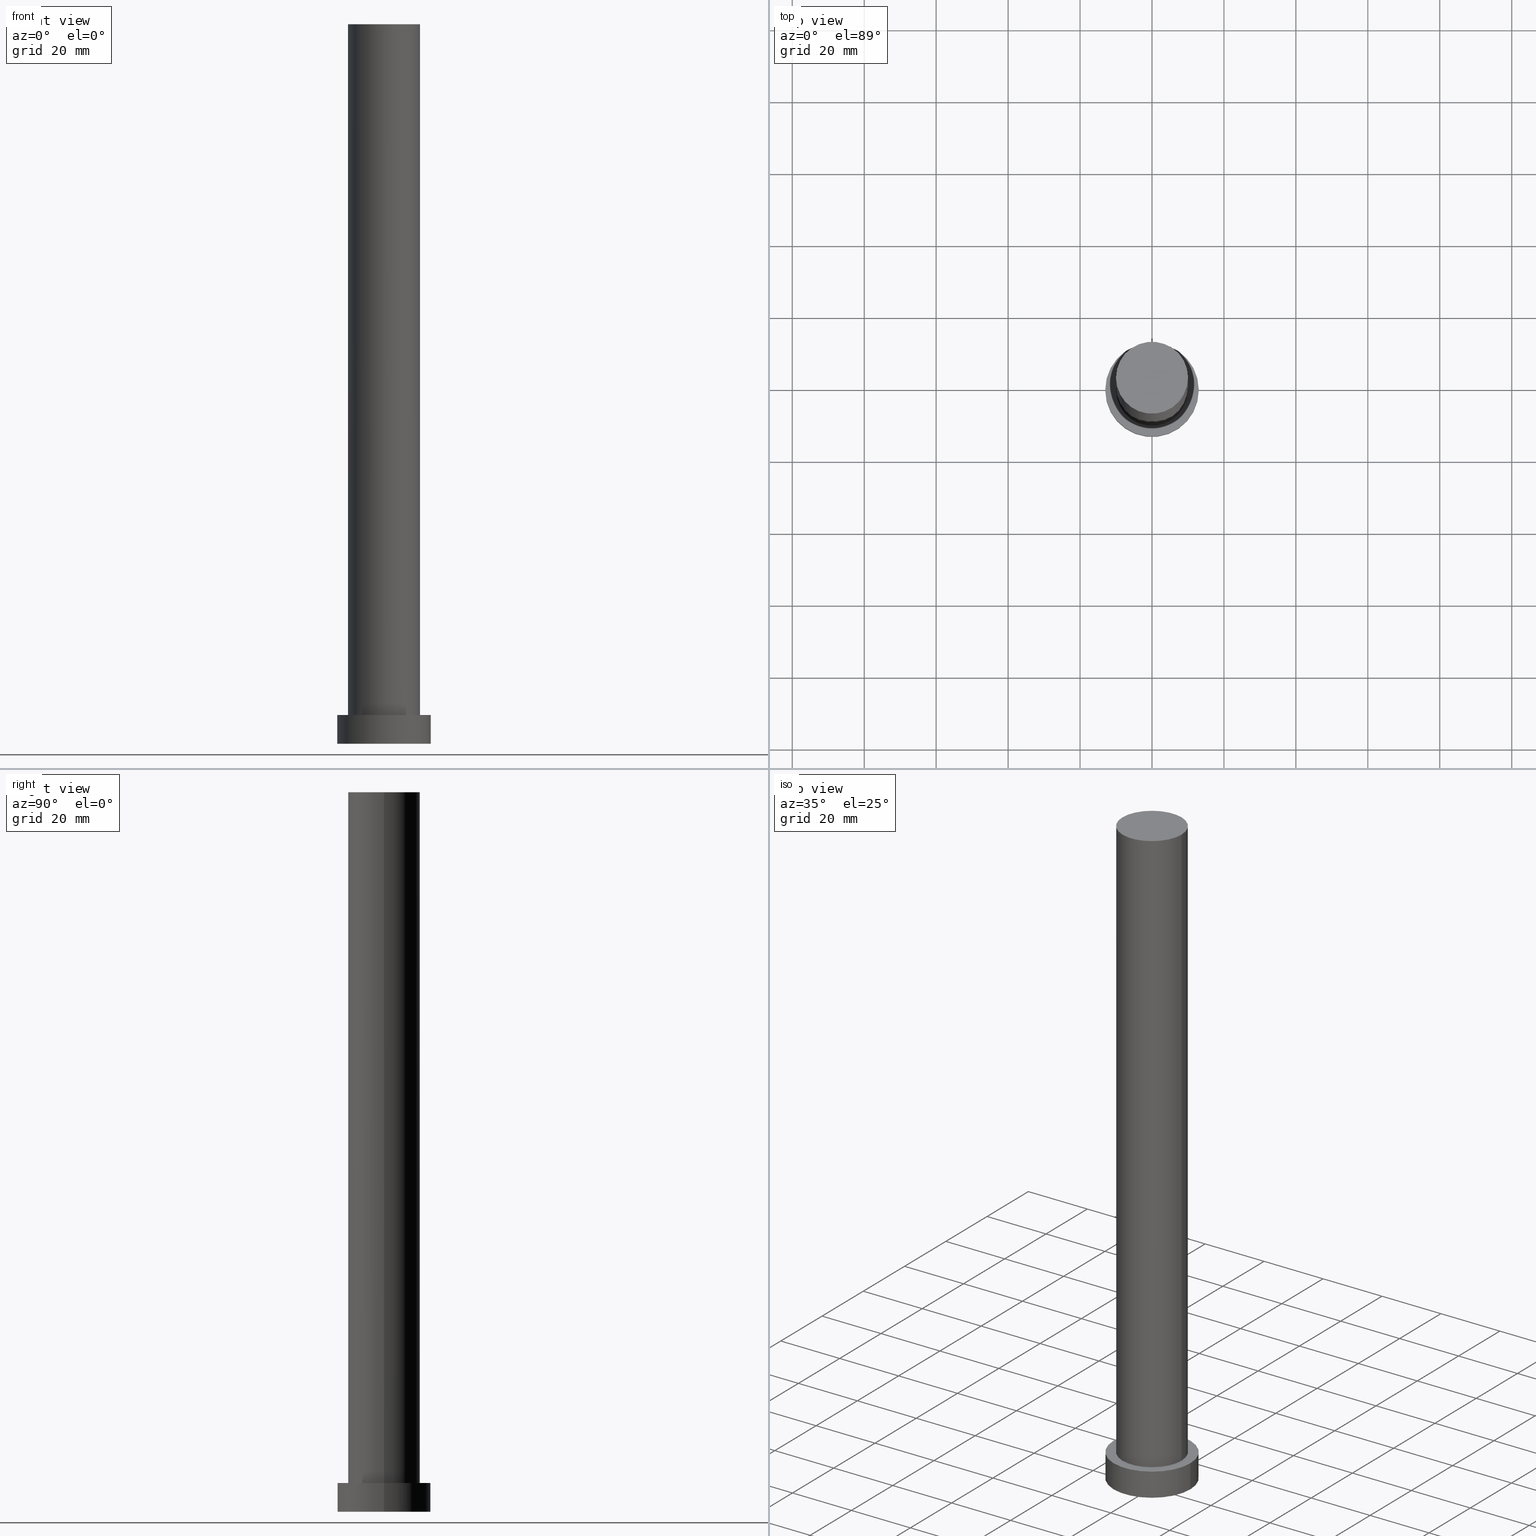
[diagram: canonical four-view strip — front | top / right | iso, engineering-drawing reading convention]
A machine part, canonical four-view strip (front | top / right | iso — engineering-drawing reading convention). The complete STEP part file that produces these views, byte-faithful:
ISO-10303-21;
HEADER;
FILE_DESCRIPTION (( 'STEP AP203' ),
    '1' );
FILE_NAME ('8702.STEP',
    '2023-02-13T07:34:11',
    ( '' ),
    ( '' ),
    'SwSTEP 2.0',
    'SolidWorks 2019',
    '' );
FILE_SCHEMA (( 'CONFIG_CONTROL_DESIGN' ));
ENDSEC;

DATA;
#1 = DIRECTION ( 'NONE',  ( 1.000000000000000000, 0.000000000000000000, 0.000000000000000000 ) ) ;
#2 = ORIENTED_EDGE ( 'NONE', *, *, #141, .T. ) ;
#3 = EDGE_CURVE ( 'NONE', #122, #185, #15, .T. ) ;
#4 = DESIGN_CONTEXT ( 'detailed design', #58, 'design' ) ;
#5 = DIRECTION ( 'NONE',  ( -0.000000000000000000, -0.000000000000000000, -1.000000000000000000 ) ) ;
#6 = ORIENTED_EDGE ( 'NONE', *, *, #32, .T. ) ;
#7 = CARTESIAN_POINT ( 'NONE',  ( 0.000000000000000000, 0.000000000000000000, 200.0000000000000000 ) ) ;
#8 = CC_DESIGN_PERSON_AND_ORGANIZATION_ASSIGNMENT ( #128, #206, ( #39 ) ) ;
#9 = CARTESIAN_POINT ( 'NONE',  ( 13.00000000000000178, 1.592040838891559293E-15, 8.000000000000000000 ) ) ;
#10 = ORIENTED_EDGE ( 'NONE', *, *, #173, .T. ) ;
#11 = ADVANCED_FACE ( 'NONE', ( #129 ), #191, .T. ) ;
#12 = CC_DESIGN_APPROVAL ( #248, ( #132 ) ) ;
#13 = DATE_TIME_ROLE ( 'creation_date' ) ;
#14 = APPROVAL_DATE_TIME ( #76, #243 ) ;
#15 = CIRCLE ( 'NONE', #143, 10.00000000000000000 ) ;
#16 = CC_DESIGN_PERSON_AND_ORGANIZATION_ASSIGNMENT ( #207, #131, ( #145 ) ) ;
#17 = CARTESIAN_POINT ( 'NONE',  ( -13.00000000000000178, 0.000000000000000000, 8.000000000000000000 ) ) ;
#18 = VECTOR ( 'NONE', #79, 1000.000000000000000 ) ;
#19 = MANIFOLD_SOLID_BREP ( 'P�idat vysunut�m3', #209 ) ;
#20 = CARTESIAN_POINT ( 'NONE',  ( 10.00000000000000000, 1.224646799147353256E-15, 200.0000000000000000 ) ) ;
#21 = AXIS2_PLACEMENT_3D ( 'NONE', #165, #115, #196 ) ;
#22 = AXIS2_PLACEMENT_3D ( 'NONE', #158, #212, #235 ) ;
#23 = LOCAL_TIME ( 8, 34, 11.00000000000000000, #52 ) ;
#24 = DIRECTION ( 'NONE',  ( -0.000000000000000000, -0.000000000000000000, -1.000000000000000000 ) ) ;
#25 = COORDINATED_UNIVERSAL_TIME_OFFSET ( 1, 0, .AHEAD. ) ;
#26 = CARTESIAN_POINT ( 'NONE',  ( 0.000000000000000000, 0.000000000000000000, 8.000000000000000000 ) ) ;
#27 = ORIENTED_EDGE ( 'NONE', *, *, #57, .T. ) ;
#28 = ADVANCED_FACE ( 'NONE', ( #133 ), #37, .T. ) ;
#29 = CARTESIAN_POINT ( 'NONE',  ( 0.000000000000000000, 0.000000000000000000, 8.000000000000000000 ) ) ;
#30 = EDGE_LOOP ( 'NONE', ( #140, #63, #6, #10 ) ) ;
#31 = PERSON_AND_ORGANIZATION ( #49, #197 ) ;
#32 = EDGE_CURVE ( 'NONE', #238, #185, #95, .T. ) ;
#33 = PERSON_AND_ORGANIZATION_ROLE ( 'classification_officer' ) ;
#34 = PERSON_AND_ORGANIZATION ( #49, #197 ) ;
#35 = DIRECTION ( 'NONE',  ( -0.000000000000000000, -0.000000000000000000, -1.000000000000000000 ) ) ;
#36 = AXIS2_PLACEMENT_3D ( 'NONE', #110, #111, #193 ) ;
#37 = CYLINDRICAL_SURFACE ( 'NONE', #36, 10.00000000000000000 ) ;
#38 = DIRECTION ( 'NONE',  ( 0.000000000000000000, 0.000000000000000000, 1.000000000000000000 ) ) ;
#39 = PRODUCT_DEFINITION ( 'NEZN�M�', '', #145, #4 ) ;
#40 = DIRECTION ( 'NONE',  ( -1.000000000000000000, 0.000000000000000000, 0.000000000000000000 ) ) ;
#41 = CARTESIAN_POINT ( 'NONE',  ( -13.00000000000000178, 0.000000000000000000, 0.000000000000000000 ) ) ;
#42 = AXIS2_PLACEMENT_3D ( 'NONE', #53, #35, #232 ) ;
#43 = LOCAL_TIME ( 8, 34, 11.00000000000000000, #72 ) ;
#44 = FACE_OUTER_BOUND ( 'NONE', #162, .T. ) ;
#45 = EDGE_LOOP ( 'NONE', ( #70, #220, #201, #69 ) ) ;
#46 = PERSON_AND_ORGANIZATION ( #49, #197 ) ;
#47 = CARTESIAN_POINT ( 'NONE',  ( 0.000000000000000000, 0.000000000000000000, 8.000000000000000000 ) ) ;
#48 = VERTEX_POINT ( 'NONE', #194 ) ;
#49 = PERSON ( 'NEUR�EN�', 'NEUR�EN�', 'NEUR�EN�', ('NEUR�EN�'), ('NEUR�EN�'), ('NEUR�EN�') ) ;
#50 = ORIENTED_EDGE ( 'NONE', *, *, #32, .F. ) ;
#51 = APPROVAL_DATE_TIME ( #228, #248 ) ;
#52 = COORDINATED_UNIVERSAL_TIME_OFFSET ( 1, 0, .AHEAD. ) ;
#53 = CARTESIAN_POINT ( 'NONE',  ( 0.000000000000000000, 0.000000000000000000, 200.0000000000000000 ) ) ;
#54 = SECURITY_CLASSIFICATION_LEVEL ( 'unclassified' ) ;
#55 = ADVANCED_FACE ( 'NONE', ( #60 ), #112, .T. ) ;
#56 = AXIS2_PLACEMENT_3D ( 'NONE', #26, #101, #183 ) ;
#57 = EDGE_CURVE ( 'NONE', #126, #238, #157, .T. ) ;
#58 = APPLICATION_CONTEXT ( 'configuration controlled 3d designs of mechanical parts and assemblies' ) ;
#59 = CARTESIAN_POINT ( 'NONE',  ( 13.00000000000000178, 1.592040838891559293E-15, 0.000000000000000000 ) ) ;
#60 = FACE_OUTER_BOUND ( 'NONE', #45, .T. ) ;
#61 = AXIS2_PLACEMENT_3D ( 'NONE', #99, #146, #180 ) ;
#62 = DIRECTION ( 'NONE',  ( -0.000000000000000000, -0.000000000000000000, -1.000000000000000000 ) ) ;
#63 = ORIENTED_EDGE ( 'NONE', *, *, #202, .F. ) ;
#64 = ORIENTED_EDGE ( 'NONE', *, *, #3, .F. ) ;
#65 = COORDINATED_UNIVERSAL_TIME_OFFSET ( 1, 0, .AHEAD. ) ;
#66 = CARTESIAN_POINT ( 'NONE',  ( 10.00000000000000000, 1.224646799147353256E-15, 8.000000000000000000 ) ) ;
#67 = ORIENTED_EDGE ( 'NONE', *, *, #181, .F. ) ;
#68 = PLANE ( 'NONE',  #21 ) ;
#69 = ORIENTED_EDGE ( 'NONE', *, *, #181, .T. ) ;
#70 = ORIENTED_EDGE ( 'NONE', *, *, #97, .F. ) ;
#71 = AXIS2_PLACEMENT_3D ( 'NONE', #253, #195, #40 ) ;
#72 = COORDINATED_UNIVERSAL_TIME_OFFSET ( 1, 0, .AHEAD. ) ;
#73 = PERSON_AND_ORGANIZATION ( #49, #197 ) ;
#74 = EDGE_CURVE ( 'NONE', #216, #120, #236, .T. ) ;
#75 = APPLICATION_CONTEXT ( 'configuration controlled 3d designs of mechanical parts and assemblies' ) ;
#76 = DATE_AND_TIME ( #250, #192 ) ;
#77 = APPLICATION_PROTOCOL_DEFINITION ( 'international standard', 'config_control_design', 1994, #75 ) ;
#78 = AXIS2_PLACEMENT_3D ( 'NONE', #47, #87, #179 ) ;
#79 = DIRECTION ( 'NONE',  ( -0.000000000000000000, -0.000000000000000000, -1.000000000000000000 ) ) ;
#80 = CC_DESIGN_DATE_AND_TIME_ASSIGNMENT ( #107, #13, ( #39 ) ) ;
#81 = PLANE ( 'NONE',  #134 ) ;
#82 = DIRECTION ( 'NONE',  ( 1.000000000000000000, 0.000000000000000000, 0.000000000000000000 ) ) ;
#83 = DIRECTION ( 'NONE',  ( 0.000000000000000000, 0.000000000000000000, 1.000000000000000000 ) ) ;
#84 = ORIENTED_EDGE ( 'NONE', *, *, #202, .T. ) ;
#85 = COORDINATED_UNIVERSAL_TIME_OFFSET ( 1, 0, .AHEAD. ) ;
#86 = CIRCLE ( 'NONE', #61, 13.00000000000000178 ) ;
#87 = DIRECTION ( 'NONE',  ( 0.000000000000000000, 0.000000000000000000, 1.000000000000000000 ) ) ;
#88 = VERTEX_POINT ( 'NONE', #59 ) ;
#89 = FACE_BOUND ( 'NONE', #169, .T. ) ;
#90 = ORIENTED_EDGE ( 'NONE', *, *, #221, .F. ) ;
#91 =( LENGTH_UNIT ( ) NAMED_UNIT ( * ) SI_UNIT ( .MILLI., .METRE. ) );
#92 = ADVANCED_FACE ( 'NONE', ( #98 ), #81, .F. ) ;
#93 = CIRCLE ( 'NONE', #255, 10.00000000000000000 ) ;
#94 = MECHANICAL_CONTEXT ( 'NONE', #75, 'mechanical' ) ;
#95 = LINE ( 'NONE', #114, #18 ) ;
#96 = CARTESIAN_POINT ( 'NONE',  ( 0.000000000000000000, 0.000000000000000000, 200.0000000000000000 ) ) ;
#97 = EDGE_CURVE ( 'NONE', #48, #88, #187, .T. ) ;
#98 = FACE_OUTER_BOUND ( 'NONE', #150, .T. ) ;
#99 = CARTESIAN_POINT ( 'NONE',  ( 0.000000000000000000, 0.000000000000000000, 0.000000000000000000 ) ) ;
#100 = UNCERTAINTY_MEASURE_WITH_UNIT (LENGTH_MEASURE( 1.000000000000000082E-05 ), #91, 'distance_accuracy_value', 'NONE');
#101 = DIRECTION ( 'NONE',  ( 0.000000000000000000, 0.000000000000000000, 1.000000000000000000 ) ) ;
#102 = CARTESIAN_POINT ( 'NONE',  ( 0.000000000000000000, 0.000000000000000000, 8.000000000000000000 ) ) ;
#103 = CARTESIAN_POINT ( 'NONE',  ( 10.00000000000000000, 1.224646799147353256E-15, 200.0000000000000000 ) ) ;
#104 = EDGE_LOOP ( 'NONE', ( #84, #27 ) ) ;
#105 = ADVANCED_BREP_SHAPE_REPRESENTATION ( '8702', ( #19, #22 ), #233 ) ;
#106 = ADVANCED_FACE ( 'NONE', ( #44 ), #119, .T. ) ;
#107 = DATE_AND_TIME ( #208, #23 ) ;
#108 = APPROVAL_STATUS ( 'not_yet_approved' ) ;
#109 = ADVANCED_FACE ( 'NONE', ( #214 ), #68, .T. ) ;
#110 = CARTESIAN_POINT ( 'NONE',  ( 0.000000000000000000, 0.000000000000000000, 200.0000000000000000 ) ) ;
#111 = DIRECTION ( 'NONE',  ( -0.000000000000000000, -0.000000000000000000, -1.000000000000000000 ) ) ;
#112 = CYLINDRICAL_SURFACE ( 'NONE', #71, 13.00000000000000178 ) ;
#113 = ADVANCED_FACE ( 'NONE', ( #89, #139 ), #200, .T. ) ;
#114 = CARTESIAN_POINT ( 'NONE',  ( -10.00000000000000000, 0.000000000000000000, 200.0000000000000000 ) ) ;
#115 = DIRECTION ( 'NONE',  ( 0.000000000000000000, 0.000000000000000000, 1.000000000000000000 ) ) ;
#116 = CARTESIAN_POINT ( 'NONE',  ( 0.000000000000000000, 0.000000000000000000, 0.000000000000000000 ) ) ;
#117 = ORIENTED_EDGE ( 'NONE', *, *, #160, .T. ) ;
#118 = APPROVAL_ROLE ( '' ) ;
#119 = CYLINDRICAL_SURFACE ( 'NONE', #170, 13.00000000000000178 ) ;
#120 = VERTEX_POINT ( 'NONE', #41 ) ;
#121 = DIRECTION ( 'NONE',  ( 0.000000000000000000, 0.000000000000000000, 1.000000000000000000 ) ) ;
#122 = VERTEX_POINT ( 'NONE', #66 ) ;
#123 = CARTESIAN_POINT ( 'NONE',  ( 0.000000000000000000, 0.000000000000000000, 8.000000000000000000 ) ) ;
#124 = CC_DESIGN_PERSON_AND_ORGANIZATION_ASSIGNMENT ( #73, #210, ( #145 ) ) ;
#125 = APPROVAL_STATUS ( 'not_yet_approved' ) ;
#126 = VERTEX_POINT ( 'NONE', #20 ) ;
#127 = SHAPE_DEFINITION_REPRESENTATION ( #254, #105 ) ;
#128 = PERSON_AND_ORGANIZATION ( #49, #197 ) ;
#129 = FACE_OUTER_BOUND ( 'NONE', #30, .T. ) ;
#130 =( NAMED_UNIT ( * ) SI_UNIT ( $, .STERADIAN. ) SOLID_ANGLE_UNIT ( ) );
#131 = PERSON_AND_ORGANIZATION_ROLE ( 'creator' ) ;
#132 = SECURITY_CLASSIFICATION ( '', '', #54 ) ;
#133 = FACE_OUTER_BOUND ( 'NONE', #168, .T. ) ;
#134 = AXIS2_PLACEMENT_3D ( 'NONE', #155, #38, #163 ) ;
#135 = CIRCLE ( 'NONE', #78, 10.00000000000000000 ) ;
#136 = CC_DESIGN_PERSON_AND_ORGANIZATION_ASSIGNMENT ( #34, #229, ( #177 ) ) ;
#137 = DIRECTION ( 'NONE',  ( -0.000000000000000000, -0.000000000000000000, -1.000000000000000000 ) ) ;
#138 = DIRECTION ( 'NONE',  ( -1.000000000000000000, 0.000000000000000000, 0.000000000000000000 ) ) ;
#139 = FACE_OUTER_BOUND ( 'NONE', #240, .T. ) ;
#140 = ORIENTED_EDGE ( 'NONE', *, *, #141, .F. ) ;
#141 = EDGE_CURVE ( 'NONE', #126, #122, #239, .T. ) ;
#142 = LOCAL_TIME ( 8, 34, 11.00000000000000000, #65 ) ;
#143 = AXIS2_PLACEMENT_3D ( 'NONE', #102, #153, #175 ) ;
#144 = ORIENTED_EDGE ( 'NONE', *, *, #160, .F. ) ;
#145 = PRODUCT_DEFINITION_FORMATION_WITH_SPECIFIED_SOURCE ( 'LIBOVOLN�', '', #177, .NOT_KNOWN. ) ;
#146 = DIRECTION ( 'NONE',  ( 0.000000000000000000, 0.000000000000000000, 1.000000000000000000 ) ) ;
#147 = CC_DESIGN_DATE_AND_TIME_ASSIGNMENT ( #199, #218, ( #132 ) ) ;
#148 = CARTESIAN_POINT ( 'NONE',  ( 0.000000000000000000, 0.000000000000000000, 8.000000000000000000 ) ) ;
#149 = APPLICATION_PROTOCOL_DEFINITION ( 'international standard', 'config_control_design', 1994, #58 ) ;
#150 = EDGE_LOOP ( 'NONE', ( #67, #90 ) ) ;
#151 = CALENDAR_DATE ( 2023, 13, 2 ) ;
#152 = PERSON_AND_ORGANIZATION ( #49, #197 ) ;
#153 = DIRECTION ( 'NONE',  ( 0.000000000000000000, 0.000000000000000000, 1.000000000000000000 ) ) ;
#154 = AXIS2_PLACEMENT_3D ( 'NONE', #148, #121, #203 ) ;
#155 = CARTESIAN_POINT ( 'NONE',  ( 0.000000000000000000, 0.000000000000000000, 0.000000000000000000 ) ) ;
#156 = APPROVAL_PERSON_ORGANIZATION ( #31, #243, #247 ) ;
#157 = CIRCLE ( 'NONE', #178, 10.00000000000000000 ) ;
#158 = CARTESIAN_POINT ( 'NONE',  ( 0.000000000000000000, 0.000000000000000000, 0.000000000000000000 ) ) ;
#159 = APPROVAL_PERSON_ORGANIZATION ( #46, #248, #118 ) ;
#160 = EDGE_CURVE ( 'NONE', #48, #216, #213, .T. ) ;
#161 = DIRECTION ( 'NONE',  ( 1.000000000000000000, 0.000000000000000000, 0.000000000000000000 ) ) ;
#162 = EDGE_LOOP ( 'NONE', ( #144, #223, #205, #242 ) ) ;
#163 = DIRECTION ( 'NONE',  ( 1.000000000000000000, 0.000000000000000000, -0.000000000000000000 ) ) ;
#164 = ORIENTED_EDGE ( 'NONE', *, *, #188, .T. ) ;
#165 = CARTESIAN_POINT ( 'NONE',  ( 0.000000000000000000, 0.000000000000000000, 200.0000000000000000 ) ) ;
#166 = ORIENTED_EDGE ( 'NONE', *, *, #173, .F. ) ;
#167 = DIRECTION ( 'NONE',  ( 0.000000000000000000, 0.000000000000000000, 1.000000000000000000 ) ) ;
#168 = EDGE_LOOP ( 'NONE', ( #224, #2, #244, #50 ) ) ;
#169 = EDGE_LOOP ( 'NONE', ( #166, #64 ) ) ;
#170 = AXIS2_PLACEMENT_3D ( 'NONE', #123, #62, #138 ) ;
#171 =( NAMED_UNIT ( * ) PLANE_ANGLE_UNIT ( ) SI_UNIT ( $, .RADIAN. ) );
#172 = APPROVAL_DATE_TIME ( #227, #176 ) ;
#173 = EDGE_CURVE ( 'NONE', #185, #122, #135, .T. ) ;
#174 = CIRCLE ( 'NONE', #204, 13.00000000000000178 ) ;
#175 = DIRECTION ( 'NONE',  ( 1.000000000000000000, 0.000000000000000000, 0.000000000000000000 ) ) ;
#176 = APPROVAL ( #125, 'NEUR�EN�' ) ;
#177 = PRODUCT ( '8702', '8702', '', ( #94 ) ) ;
#178 = AXIS2_PLACEMENT_3D ( 'NONE', #96, #251, #82 ) ;
#179 = DIRECTION ( 'NONE',  ( 1.000000000000000000, 0.000000000000000000, 0.000000000000000000 ) ) ;
#180 = DIRECTION ( 'NONE',  ( 1.000000000000000000, 0.000000000000000000, 0.000000000000000000 ) ) ;
#181 = EDGE_CURVE ( 'NONE', #120, #88, #86, .T. ) ;
#182 = CALENDAR_DATE ( 2023, 13, 2 ) ;
#183 = DIRECTION ( 'NONE',  ( 1.000000000000000000, 0.000000000000000000, -0.000000000000000000 ) ) ;
#184 = CC_DESIGN_PERSON_AND_ORGANIZATION_ASSIGNMENT ( #152, #33, ( #132 ) ) ;
#185 = VERTEX_POINT ( 'NONE', #222 ) ;
#186 = DIRECTION ( 'NONE',  ( 0.000000000000000000, 0.000000000000000000, 1.000000000000000000 ) ) ;
#187 = LINE ( 'NONE', #9, #231 ) ;
#188 = EDGE_CURVE ( 'NONE', #216, #48, #174, .T. ) ;
#189 = AXIS2_PLACEMENT_3D ( 'NONE', #116, #167, #198 ) ;
#190 = LOCAL_TIME ( 8, 34, 11.00000000000000000, #25 ) ;
#191 = CYLINDRICAL_SURFACE ( 'NONE', #42, 10.00000000000000000 ) ;
#192 = LOCAL_TIME ( 8, 34, 11.00000000000000000, #85 ) ;
#193 = DIRECTION ( 'NONE',  ( -1.000000000000000000, 0.000000000000000000, 0.000000000000000000 ) ) ;
#194 = CARTESIAN_POINT ( 'NONE',  ( 13.00000000000000178, 1.592040838891559293E-15, 8.000000000000000000 ) ) ;
#195 = DIRECTION ( 'NONE',  ( -0.000000000000000000, -0.000000000000000000, -1.000000000000000000 ) ) ;
#196 = DIRECTION ( 'NONE',  ( 1.000000000000000000, 0.000000000000000000, -0.000000000000000000 ) ) ;
#197 = ORGANIZATION ( 'NEUR�EN�', 'NEUR�EN�', '' ) ;
#198 = DIRECTION ( 'NONE',  ( 1.000000000000000000, 0.000000000000000000, 0.000000000000000000 ) ) ;
#199 = DATE_AND_TIME ( #211, #142 ) ;
#200 = PLANE ( 'NONE',  #56 ) ;
#201 = ORIENTED_EDGE ( 'NONE', *, *, #74, .T. ) ;
#202 = EDGE_CURVE ( 'NONE', #238, #126, #93, .T. ) ;
#203 = DIRECTION ( 'NONE',  ( 1.000000000000000000, 0.000000000000000000, 0.000000000000000000 ) ) ;
#204 = AXIS2_PLACEMENT_3D ( 'NONE', #29, #186, #1 ) ;
#205 = ORIENTED_EDGE ( 'NONE', *, *, #221, .T. ) ;
#206 = PERSON_AND_ORGANIZATION_ROLE ( 'creator' ) ;
#207 = PERSON_AND_ORGANIZATION ( #49, #197 ) ;
#208 = CALENDAR_DATE ( 2023, 13, 2 ) ;
#209 = CLOSED_SHELL ( 'NONE', ( #28, #106, #55, #113, #92, #11, #109 ) ) ;
#210 = PERSON_AND_ORGANIZATION_ROLE ( 'design_supplier' ) ;
#211 = CALENDAR_DATE ( 2023, 13, 2 ) ;
#212 = DIRECTION ( 'NONE',  ( 0.000000000000000000, 0.000000000000000000, 1.000000000000000000 ) ) ;
#213 = CIRCLE ( 'NONE', #154, 13.00000000000000178 ) ;
#214 = FACE_OUTER_BOUND ( 'NONE', #104, .T. ) ;
#215 = CARTESIAN_POINT ( 'NONE',  ( -13.00000000000000178, 0.000000000000000000, 8.000000000000000000 ) ) ;
#216 = VERTEX_POINT ( 'NONE', #215 ) ;
#217 = CC_DESIGN_SECURITY_CLASSIFICATION ( #132, ( #145 ) ) ;
#218 = DATE_TIME_ROLE ( 'classification_date' ) ;
#219 = APPROVAL_PERSON_ORGANIZATION ( #225, #176, #246 ) ;
#220 = ORIENTED_EDGE ( 'NONE', *, *, #188, .F. ) ;
#221 = EDGE_CURVE ( 'NONE', #88, #120, #237, .T. ) ;
#222 = CARTESIAN_POINT ( 'NONE',  ( -10.00000000000000000, 0.000000000000000000, 8.000000000000000000 ) ) ;
#223 = ORIENTED_EDGE ( 'NONE', *, *, #97, .T. ) ;
#224 = ORIENTED_EDGE ( 'NONE', *, *, #57, .F. ) ;
#225 = PERSON_AND_ORGANIZATION ( #49, #197 ) ;
#226 = CC_DESIGN_APPROVAL ( #243, ( #145 ) ) ;
#227 = DATE_AND_TIME ( #151, #43 ) ;
#228 = DATE_AND_TIME ( #182, #190 ) ;
#229 = PERSON_AND_ORGANIZATION_ROLE ( 'design_owner' ) ;
#230 = PRODUCT_RELATED_PRODUCT_CATEGORY ( 'detail', '', ( #177 ) ) ;
#231 = VECTOR ( 'NONE', #24, 1000.000000000000000 ) ;
#232 = DIRECTION ( 'NONE',  ( -1.000000000000000000, 0.000000000000000000, 0.000000000000000000 ) ) ;
#233 =( GEOMETRIC_REPRESENTATION_CONTEXT ( 3 ) GLOBAL_UNCERTAINTY_ASSIGNED_CONTEXT ( ( #100 ) ) GLOBAL_UNIT_ASSIGNED_CONTEXT ( ( #91, #171, #130 ) ) REPRESENTATION_CONTEXT ( 'NONE', 'WORKASPACE' ) );
#234 = CC_DESIGN_APPROVAL ( #176, ( #39 ) ) ;
#235 = DIRECTION ( 'NONE',  ( 1.000000000000000000, 0.000000000000000000, 0.000000000000000000 ) ) ;
#236 = LINE ( 'NONE', #17, #245 ) ;
#237 = CIRCLE ( 'NONE', #189, 13.00000000000000178 ) ;
#238 = VERTEX_POINT ( 'NONE', #241 ) ;
#239 = LINE ( 'NONE', #103, #252 ) ;
#240 = EDGE_LOOP ( 'NONE', ( #164, #117 ) ) ;
#241 = CARTESIAN_POINT ( 'NONE',  ( -10.00000000000000000, 0.000000000000000000, 200.0000000000000000 ) ) ;
#242 = ORIENTED_EDGE ( 'NONE', *, *, #74, .F. ) ;
#243 = APPROVAL ( #249, 'NEUR�EN�' ) ;
#244 = ORIENTED_EDGE ( 'NONE', *, *, #3, .T. ) ;
#245 = VECTOR ( 'NONE', #137, 1000.000000000000000 ) ;
#246 = APPROVAL_ROLE ( '' ) ;
#247 = APPROVAL_ROLE ( '' ) ;
#248 = APPROVAL ( #108, 'NEUR�EN�' ) ;
#249 = APPROVAL_STATUS ( 'not_yet_approved' ) ;
#250 = CALENDAR_DATE ( 2023, 13, 2 ) ;
#251 = DIRECTION ( 'NONE',  ( 0.000000000000000000, 0.000000000000000000, 1.000000000000000000 ) ) ;
#252 = VECTOR ( 'NONE', #5, 1000.000000000000000 ) ;
#253 = CARTESIAN_POINT ( 'NONE',  ( 0.000000000000000000, 0.000000000000000000, 8.000000000000000000 ) ) ;
#254 = PRODUCT_DEFINITION_SHAPE ( 'NONE', 'NONE',  #39 ) ;
#255 = AXIS2_PLACEMENT_3D ( 'NONE', #7, #83, #161 ) ;
ENDSEC;
END-ISO-10303-21;
